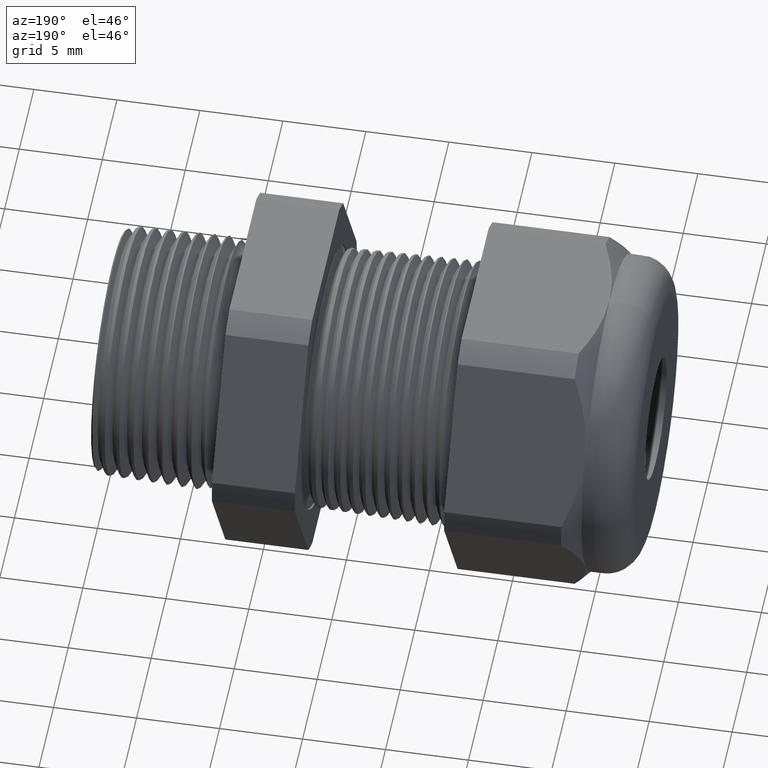
[diagram: clean part render]
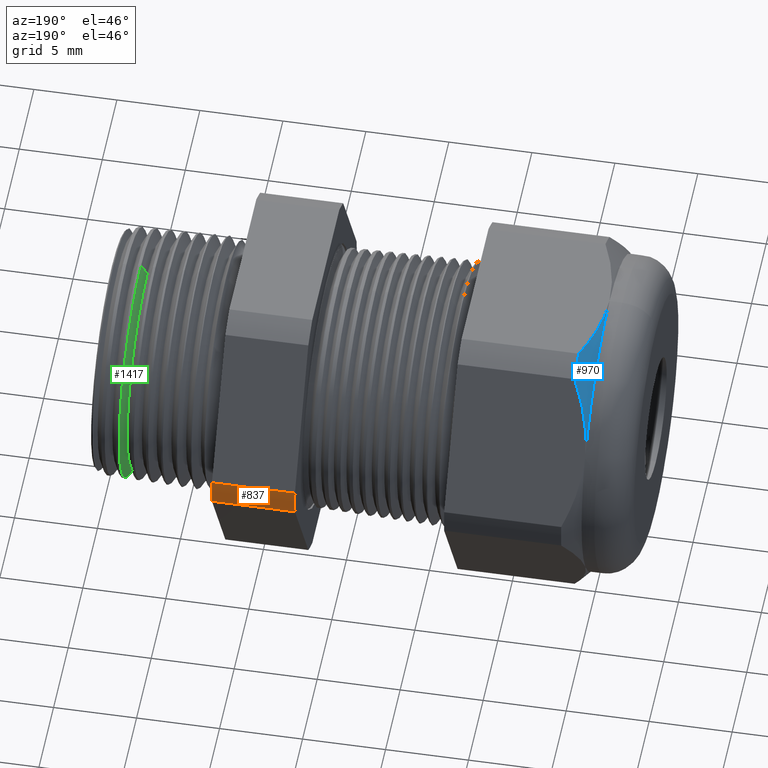
[diagram: same view with three faces highlighted in distinct colors, each labeled with its STEP entity id]
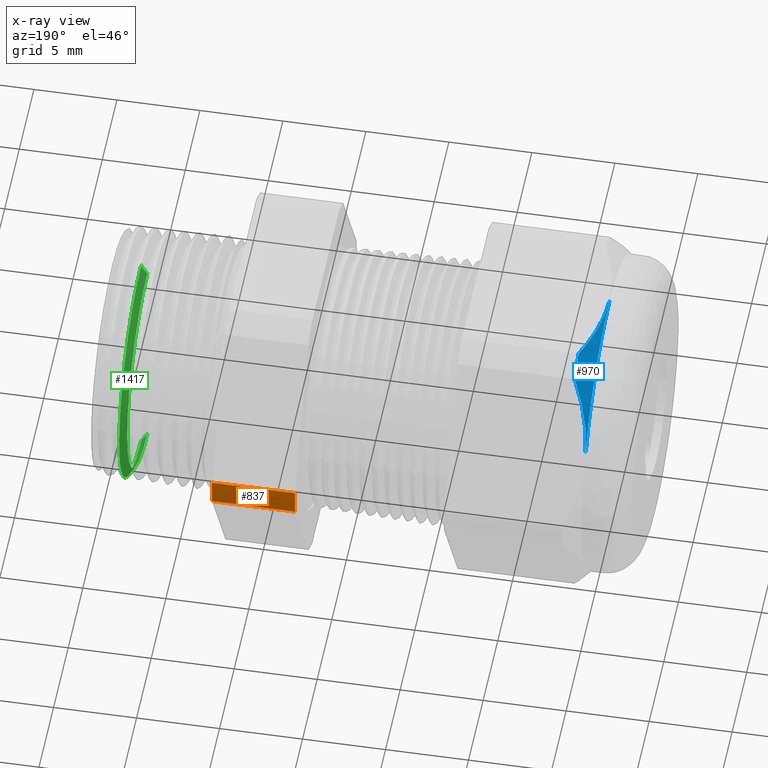
[diagram: x-ray of the same camera — body ghosted, the three highlighted faces saturated]
A machine part, auxiliary view with three faces highlighted in distinct colors.
The next image is the same camera in x-ray (body ghosted, the three faces saturated) — at least one of them is partly hidden behind the body in this view.
Their STEP definitions:

[orange] entity #837 — the highlighted cylindrical surface (partial cylindrical patch) has radius 10.5728 mm, axis along (-1, 0, 0).
#481 = VERTEX_POINT ( 'NONE', #2710 ) ;
#483 = EDGE_CURVE ( 'NONE', #481, #484, #2709, .T. ) ;
#484 = VERTEX_POINT ( 'NONE', #2704 ) ;
#702 = VERTEX_POINT ( 'NONE', #3147 ) ;
#757 = EDGE_CURVE ( 'NONE', #702, #758, #3286, .T. ) ;
#758 = VERTEX_POINT ( 'NONE', #3281 ) ;
#821 = EDGE_CURVE ( 'NONE', #758, #481, #3349, .T. ) ;
#822 = ORIENTED_EDGE ( 'NONE', *, *, #757, .F. ) ;
#837 = ADVANCED_FACE ( 'NONE', ( #3403 ), #3401, .T. ) ;
#838 = EDGE_LOOP ( 'NONE', ( #839, #895, #896, #822 ) ) ;
#839 = ORIENTED_EDGE ( 'NONE', *, *, #894, .T. ) ;
#894 = EDGE_CURVE ( 'NONE', #702, #484, #3512, .T. ) ;
#895 = ORIENTED_EDGE ( 'NONE', *, *, #483, .F. ) ;
#896 = ORIENTED_EDGE ( 'NONE', *, *, #821, .F. ) ;
#2704 = CARTESIAN_POINT ( 'NONE',  ( -0.5068503937007874400, 0.4150909474475088000, -0.03104138925901225900 ) ) ;
#2705 = DIRECTION ( 'NONE',  ( 0.0000000000000000000, 0.0000000000000000000, 1.000000000000000000 ) ) ;
#2706 = DIRECTION ( 'NONE',  ( -1.000000000000000000, 0.0000000000000000000, 0.0000000000000000000 ) ) ;
#2707 = CARTESIAN_POINT ( 'NONE',  ( -0.5068503937007874400, 0.0000000000000000000, 0.0000000000000000000 ) ) ;
#2708 = AXIS2_PLACEMENT_3D ( 'NONE', #2707, #2706, #2705 ) ;
#2709 = CIRCLE ( 'NONE', #2708, 0.4162500000000001200 ) ;
#2710 = CARTESIAN_POINT ( 'NONE',  ( -0.5068503937007874400, 0.4150909474475088000, 0.03104138925901281700 ) ) ;
#3147 = CARTESIAN_POINT ( 'NONE',  ( -0.3100000000000000000, 0.4150909474475088000, -0.03104138925901228600 ) ) ;
#3281 = CARTESIAN_POINT ( 'NONE',  ( -0.3100000000000000000, 0.4150909474475088000, 0.03104138925901281700 ) ) ;
#3282 = DIRECTION ( 'NONE',  ( 0.0000000000000000000, 0.0000000000000000000, -1.000000000000000000 ) ) ;
#3283 = DIRECTION ( 'NONE',  ( 1.000000000000000000, 0.0000000000000000000, 0.0000000000000000000 ) ) ;
#3284 = CARTESIAN_POINT ( 'NONE',  ( -0.3100000000000000000, 0.0000000000000000000, 0.0000000000000000000 ) ) ;
#3285 = AXIS2_PLACEMENT_3D ( 'NONE', #3284, #3283, #3282 ) ;
#3286 = CIRCLE ( 'NONE', #3285, 0.4162500000000001200 ) ;
#3349 = LINE ( 'NONE', #3416, #3415 ) ;
#3397 = DIRECTION ( 'NONE',  ( 0.0000000000000000000, 0.0000000000000000000, 1.000000000000000000 ) ) ;
#3398 = DIRECTION ( 'NONE',  ( -1.000000000000000000, 0.0000000000000000000, 0.0000000000000000000 ) ) ;
#3399 = CARTESIAN_POINT ( 'NONE',  ( 0.0000000000000000000, 0.0000000000000000000, 0.0000000000000000000 ) ) ;
#3400 = AXIS2_PLACEMENT_3D ( 'NONE', #3399, #3398, #3397 ) ;
#3401 = CYLINDRICAL_SURFACE ( 'NONE', #3400, 0.4162500000000001200 ) ;
#3403 = FACE_OUTER_BOUND ( 'NONE', #838, .T. ) ;
#3414 = DIRECTION ( 'NONE',  ( -1.000000000000000000, 0.0000000000000000000, 0.0000000000000000000 ) ) ;
#3415 = VECTOR ( 'NONE', #3414, 39.37007874015748100 ) ;
#3416 = CARTESIAN_POINT ( 'NONE',  ( 0.0000000000000000000, 0.4150909474475088000, 0.03104138925901281700 ) ) ;
#3509 = DIRECTION ( 'NONE',  ( -1.000000000000000000, 0.0000000000000000000, 0.0000000000000000000 ) ) ;
#3510 = VECTOR ( 'NONE', #3509, 39.37007874015748100 ) ;
#3511 = CARTESIAN_POINT ( 'NONE',  ( 0.0000000000000000000, 0.4150909474475088000, -0.03104138925901225900 ) ) ;
#3512 = LINE ( 'NONE', #3511, #3510 ) ;

[blue] entity #970 — the highlighted conical surface has half-angle 45 deg.
#657 = EDGE_CURVE ( 'NONE', #737, #1429, #3016, .T. ) ;
#708 = EDGE_CURVE ( 'NONE', #2081, #721, #3133, .T. ) ;
#721 = VERTEX_POINT ( 'NONE', #3165 ) ;
#723 = EDGE_CURVE ( 'NONE', #721, #737, #3164, .T. ) ;
#737 = VERTEX_POINT ( 'NONE', #3194 ) ;
#950 = ORIENTED_EDGE ( 'NONE', *, *, #2088, .T. ) ;
#951 = ORIENTED_EDGE ( 'NONE', *, *, #657, .F. ) ;
#970 = ADVANCED_FACE ( 'NONE', ( #3560 ), #3559, .T. ) ;
#971 = EDGE_LOOP ( 'NONE', ( #972, #973, #950, #951 ) ) ;
#972 = ORIENTED_EDGE ( 'NONE', *, *, #723, .F. ) ;
#973 = ORIENTED_EDGE ( 'NONE', *, *, #708, .F. ) ;
#1429 = VERTEX_POINT ( 'NONE', #4270 ) ;
#2081 = VERTEX_POINT ( 'NONE', #4776 ) ;
#2088 = EDGE_CURVE ( 'NONE', #2081, #1429, #4764, .T. ) ;
#3016 = B_SPLINE_CURVE_WITH_KNOTS ( 'NONE', 3,
 ( #3074, #3073, #3072, #3071, #3070, #3069, #3068, #3067 ),
 .UNSPECIFIED., .F., .F.,
 ( 4, 2, 2, 4 ),
 ( 0.007228053594460309000, 0.009573670341338595700, 0.01074647871477773900, 0.01191928708821688100 ),
 .UNSPECIFIED. ) ;
#3067 = CARTESIAN_POINT ( 'NONE',  ( -1.179763779527558800, 0.0000000000000000000, 0.3750000000000001100 ) ) ;
#3068 = CARTESIAN_POINT ( 'NONE',  ( -1.179763779527559100, 0.01568637131276642800, 0.3750000000000001100 ) ) ;
#3069 = CARTESIAN_POINT ( 'NONE',  ( -1.178769479952293900, 0.03130286613836862100, 0.3750000000000001700 ) ) ;
#3070 = CARTESIAN_POINT ( 'NONE',  ( -1.174967165678735300, 0.06207756443688113700, 0.3750000000000001100 ) ) ;
#3071 = CARTESIAN_POINT ( 'NONE',  ( -1.172160678549065000, 0.07729185397029253400, 0.3750000000000001100 ) ) ;
#3072 = CARTESIAN_POINT ( 'NONE',  ( -1.161355067212263900, 0.1224785947535361300, 0.3750000000000001100 ) ) ;
#3073 = CARTESIAN_POINT ( 'NONE',  ( -1.150859887633265200, 0.1522172168218787800, 0.3750000000000002200 ) ) ;
#3074 = CARTESIAN_POINT ( 'NONE',  ( -1.138513779527559300, 0.1806628420566883900, 0.3750000000000001100 ) ) ;
#3133 = B_SPLINE_CURVE_WITH_KNOTS ( 'NONE', 3,
 ( #3192, #3191, #3190, #3189, #3188, #3187 ),
 .UNSPECIFIED., .F., .F.,
 ( 4, 2, 4 ),
 ( 0.004709976344604644600, 0.007063225540252110600, 0.009416474735899576700 ),
 .UNSPECIFIED. ) ;
#3160 = DIRECTION ( 'NONE',  ( 0.0000000000000000000, 0.0000000000000000000, -1.000000000000000000 ) ) ;
#3161 = DIRECTION ( 'NONE',  ( 1.000000000000000000, 0.0000000000000000000, 0.0000000000000000000 ) ) ;
#3162 = CARTESIAN_POINT ( 'NONE',  ( -1.138513779527559300, 0.0000000000000000000, 0.0000000000000000000 ) ) ;
#3163 = AXIS2_PLACEMENT_3D ( 'NONE', #3162, #3161, #3160 ) ;
#3164 = CIRCLE ( 'NONE', #3163, 0.4162500000000000100 ) ;
#3165 = CARTESIAN_POINT ( 'NONE',  ( -1.138513779527559100, 0.2344281053908208200, 0.3439586107409876000 ) ) ;
#3187 = CARTESIAN_POINT ( 'NONE',  ( -1.138513779527559100, 0.2344281053908208200, 0.3439586107409876000 ) ) ;
#3188 = CARTESIAN_POINT ( 'NONE',  ( -1.151003202145915800, 0.2488160174420979400, 0.3190380160533430300 ) ) ;
#3189 = CARTESIAN_POINT ( 'NONE',  ( -1.161459219999150000, 0.2636869420682238500, 0.2932808190453657900 ) ) ;
#3190 = CARTESIAN_POINT ( 'NONE',  ( -1.175817769005222500, 0.2938118100972371700, 0.2411030170478075700 ) ) ;
#3191 = CARTESIAN_POINT ( 'NONE',  ( -1.179763779527558400, 0.3091297520026596900, 0.2145715634002271500 ) ) ;
#3192 = CARTESIAN_POINT ( 'NONE',  ( -1.179763779527558800, 0.3247595264191648300, 0.1875000000000002200 ) ) ;
#3194 = CARTESIAN_POINT ( 'NONE',  ( -1.138513779527559300, 0.1806628420566883900, 0.3750000000000001100 ) ) ;
#3555 = DIRECTION ( 'NONE',  ( 0.0000000000000000000, 0.0000000000000000000, 1.000000000000000000 ) ) ;
#3556 = DIRECTION ( 'NONE',  ( 1.000000000000000000, 0.0000000000000000000, 0.0000000000000000000 ) ) ;
#3557 = AXIS2_PLACEMENT_3D ( 'NONE', #3564, #3556, #3555 ) ;
#3559 = CONICAL_SURFACE ( 'NONE', #3557, 0.3750000000000001100, 0.7853981633974501700 ) ;
#3560 = FACE_OUTER_BOUND ( 'NONE', #971, .T. ) ;
#3564 = CARTESIAN_POINT ( 'NONE',  ( -1.179763779527558800, 0.0000000000000000000, 0.0000000000000000000 ) ) ;
#4270 = CARTESIAN_POINT ( 'NONE',  ( -1.179763779527558800, 0.0000000000000000000, 0.3750000000000001100 ) ) ;
#4760 = DIRECTION ( 'NONE',  ( 0.0000000000000000000, 0.0000000000000000000, -1.000000000000000000 ) ) ;
#4761 = DIRECTION ( 'NONE',  ( 1.000000000000000000, 0.0000000000000000000, 0.0000000000000000000 ) ) ;
#4762 = CARTESIAN_POINT ( 'NONE',  ( -1.179763779527558800, 0.0000000000000000000, 0.0000000000000000000 ) ) ;
#4763 = AXIS2_PLACEMENT_3D ( 'NONE', #4762, #4761, #4760 ) ;
#4764 = CIRCLE ( 'NONE', #4763, 0.3750000000000000600 ) ;
#4776 = CARTESIAN_POINT ( 'NONE',  ( -1.179763779527558800, 0.3247595264191648300, 0.1875000000000002200 ) ) ;

[green] entity #1417 — the highlighted conical surface has half-angle 58.5 deg.
#1361 = ORIENTED_EDGE ( 'NONE', *, *, #1362, .T. ) ;
#1362 = EDGE_CURVE ( 'NONE', #1435, #1424, #4149, .T. ) ;
#1416 = EDGE_CURVE ( 'NONE', #1431, #1434, #4239, .T. ) ;
#1417 = ADVANCED_FACE ( 'NONE', ( #4240 ), #4233, .T. ) ;
#1422 = EDGE_LOOP ( 'NONE', ( #1430, #1423, #1361, #1437 ) ) ;
#1423 = ORIENTED_EDGE ( 'NONE', *, *, #1439, .T. ) ;
#1424 = VERTEX_POINT ( 'NONE', #4219 ) ;
#1425 = EDGE_CURVE ( 'NONE', #1431, #1424, #4281, .T. ) ;
#1430 = ORIENTED_EDGE ( 'NONE', *, *, #1416, .T. ) ;
#1431 = VERTEX_POINT ( 'NONE', #4265 ) ;
#1434 = VERTEX_POINT ( 'NONE', #4263 ) ;
#1435 = VERTEX_POINT ( 'NONE', #4262 ) ;
#1437 = ORIENTED_EDGE ( 'NONE', *, *, #1425, .F. ) ;
#1439 = EDGE_CURVE ( 'NONE', #1434, #1435, #4256, .T. ) ;
#4145 = DIRECTION ( 'NONE',  ( 0.0000000000000000000, 0.0000000000000000000, -1.000000000000000000 ) ) ;
#4146 = DIRECTION ( 'NONE',  ( -1.000000000000000000, 0.0000000000000000000, 0.0000000000000000000 ) ) ;
#4147 = CARTESIAN_POINT ( 'NONE',  ( -0.06868745204508981700, 0.0000000000000000000, 0.0000000000000000000 ) ) ;
#4148 = AXIS2_PLACEMENT_3D ( 'NONE', #4147, #4146, #4145 ) ;
#4149 = CIRCLE ( 'NONE', #4148, 0.2942560709630754900 ) ;
#4219 = CARTESIAN_POINT ( 'NONE',  ( -0.06868745204508981700, 3.603597554346068600E-017, -0.2942560709630754900 ) ) ;
#4230 = DIRECTION ( 'NONE',  ( 0.0000000000000000000, 0.0000000000000000000, -1.000000000000000000 ) ) ;
#4231 = DIRECTION ( 'NONE',  ( 1.000000000000000000, 0.0000000000000000000, 0.0000000000000000000 ) ) ;
#4232 = AXIS2_PLACEMENT_3D ( 'NONE', #4234, #4231, #4230 ) ;
#4233 = CONICAL_SURFACE ( 'NONE', #4232, 0.2701319446236517000, 1.021017612416700100 ) ;
#4234 = CARTESIAN_POINT ( 'NONE',  ( -0.08347073567907516100, 0.0000000000000000000, 0.0000000000000000000 ) ) ;
#4235 = DIRECTION ( 'NONE',  ( 0.0000000000000000000, 0.0000000000000000000, -1.000000000000000000 ) ) ;
#4236 = DIRECTION ( 'NONE',  ( 1.000000000000000000, 0.0000000000000000000, 0.0000000000000000000 ) ) ;
#4237 = CARTESIAN_POINT ( 'NONE',  ( -0.08347073567907516100, 0.0000000000000000000, 0.0000000000000000000 ) ) ;
#4238 = AXIS2_PLACEMENT_3D ( 'NONE', #4237, #4236, #4235 ) ;
#4239 = CIRCLE ( 'NONE', #4238, 0.2701319446236517000 ) ;
#4240 = FACE_OUTER_BOUND ( 'NONE', #1422, .T. ) ;
#4253 = DIRECTION ( 'NONE',  ( 0.5224985647159341400, 1.044183048100723500E-016, 0.8526401643541011700 ) ) ;
#4254 = VECTOR ( 'NONE', #4253, 39.37007874015748100 ) ;
#4255 = CARTESIAN_POINT ( 'NONE',  ( -0.08347073567907516100, 3.308162213308051400E-017, 0.2701319446236517000 ) ) ;
#4256 = LINE ( 'NONE', #4255, #4254 ) ;
#4262 = CARTESIAN_POINT ( 'NONE',  ( -0.06868745204508981700, 0.0000000000000000000, 0.2942560709630754900 ) ) ;
#4263 = CARTESIAN_POINT ( 'NONE',  ( -0.08347073567907516100, 0.0000000000000000000, 0.2701319446236517000 ) ) ;
#4265 = CARTESIAN_POINT ( 'NONE',  ( -0.08347073567907516100, 3.460414971413819000E-017, -0.2701319446236517000 ) ) ;
#4278 = DIRECTION ( 'NONE',  ( 0.5224985647159341400, 0.0000000000000000000, -0.8526401643541011700 ) ) ;
#4279 = VECTOR ( 'NONE', #4278, 39.37007874015748100 ) ;
#4280 = CARTESIAN_POINT ( 'NONE',  ( -0.08347073567907516100, 0.0000000000000000000, -0.2701319446236517000 ) ) ;
#4281 = LINE ( 'NONE', #4280, #4279 ) ;